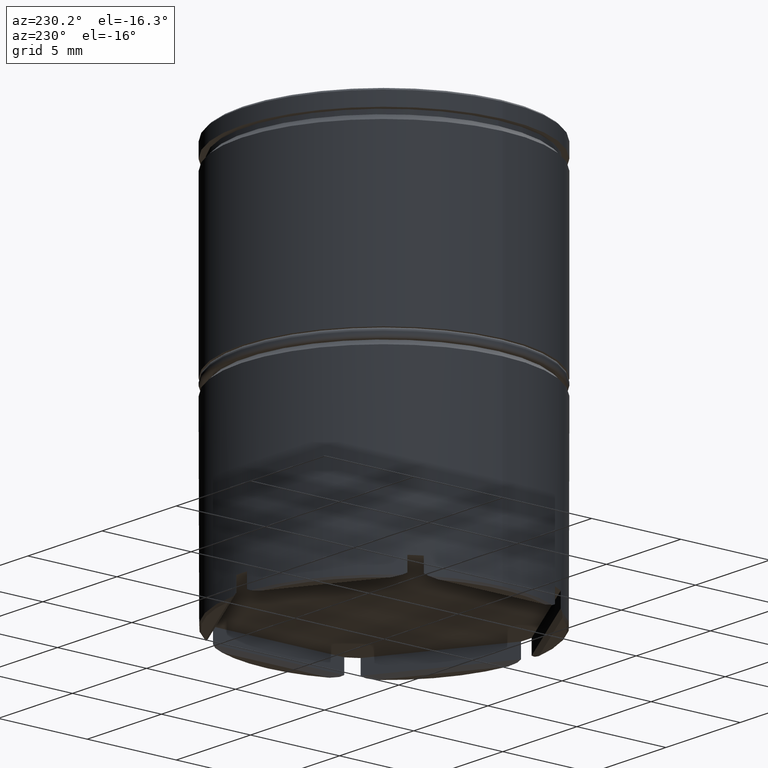
[diagram: clean part render]
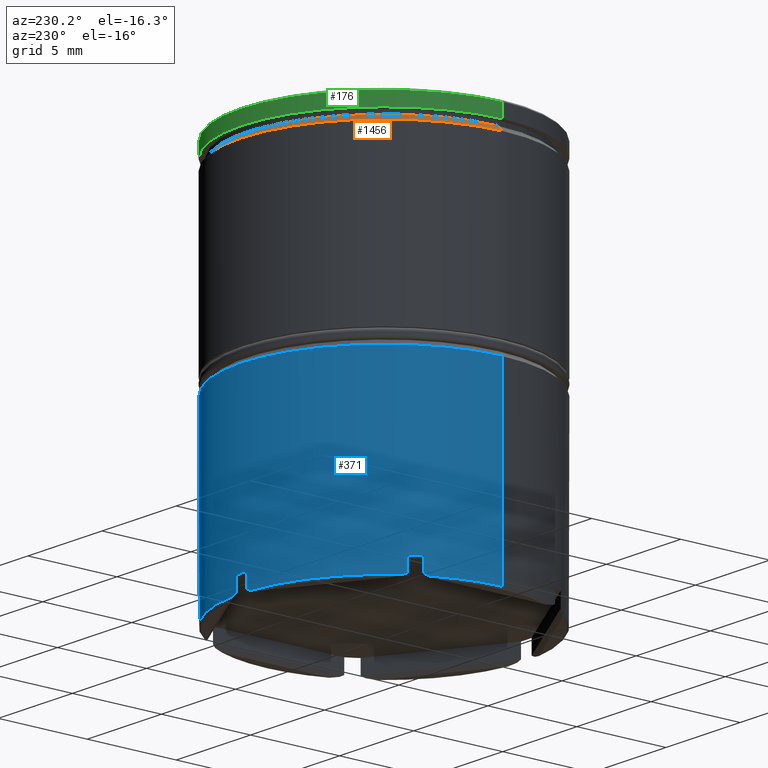
[diagram: same view with three faces highlighted in distinct colors, each labeled with its STEP entity id]
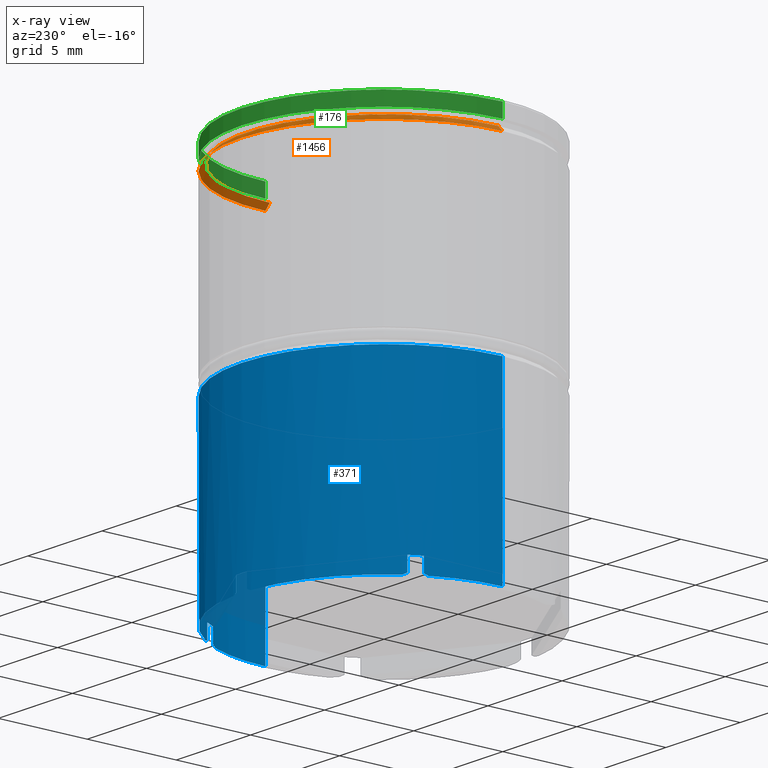
[diagram: x-ray of the same camera — body ghosted, the three highlighted faces saturated]
A machine part, auxiliary view with three faces highlighted in distinct colors.
The next image is the same camera in x-ray (body ghosted, the three faces saturated) — at least one of them is partly hidden behind the body in this view.
Their STEP definitions:

[orange] entity #1456 — the highlighted conical surface has half-angle 45 deg.
#74 = DIRECTION ( 'NONE',  ( 0.000000000000000000, 0.000000000000000000, -1.000000000000000000 ) ) ;
#82 = VECTOR ( 'NONE', #817, 1000.000000000000000 ) ;
#91 = DIRECTION ( 'NONE',  ( 0.000000000000000000, 0.000000000000000000, -1.000000000000000000 ) ) ;
#97 = ORIENTED_EDGE ( 'NONE', *, *, #109, .T. ) ;
#109 = EDGE_CURVE ( 'NONE', #306, #643, #930, .T. ) ;
#115 = AXIS2_PLACEMENT_3D ( 'NONE', #321, #91, #314 ) ;
#168 = CONICAL_SURFACE ( 'NONE', #349, 7.699999999999994849, 0.7853981633974511656 ) ;
#188 = EDGE_LOOP ( 'NONE', ( #353, #97, #530, #1509 ) ) ;
#200 = LINE ( 'NONE', #207, #1150 ) ;
#207 = CARTESIAN_POINT ( 'NONE',  ( -7.699999999999994849, 0.000000000000000000, -1.125000000000000222 ) ) ;
#297 = CARTESIAN_POINT ( 'NONE',  ( -8.000000000000000000, 9.797174393178825657E-16, -1.425000000000003597 ) ) ;
#306 = VERTEX_POINT ( 'NONE', #433 ) ;
#314 = DIRECTION ( 'NONE',  ( 1.000000000000000000, 0.000000000000000000, 0.000000000000000000 ) ) ;
#321 = CARTESIAN_POINT ( 'NONE',  ( 0.000000000000000000, 0.000000000000000000, -1.425000000000003597 ) ) ;
#349 = AXIS2_PLACEMENT_3D ( 'NONE', #723, #74, #1090 ) ;
#353 = ORIENTED_EDGE ( 'NONE', *, *, #1625, .F. ) ;
#367 = DIRECTION ( 'NONE',  ( -0.000000000000000000, -0.000000000000000000, 1.000000000000000000 ) ) ;
#381 = CIRCLE ( 'NONE', #1307, 7.700000000000000178 ) ;
#388 = CARTESIAN_POINT ( 'NONE',  ( 7.699999999999994849, 9.429780353434613113E-16, -1.125000000000000222 ) ) ;
#433 = CARTESIAN_POINT ( 'NONE',  ( 7.700000000000000178, 0.000000000000000000, -1.125000000000000222 ) ) ;
#441 = CARTESIAN_POINT ( 'NONE',  ( -7.700000000000000178, 9.429780353434619030E-16, -1.125000000000000222 ) ) ;
#530 = ORIENTED_EDGE ( 'NONE', *, *, #810, .F. ) ;
#643 = VERTEX_POINT ( 'NONE', #1190 ) ;
#651 = DIRECTION ( 'NONE',  ( 1.000000000000000000, 0.000000000000000000, 0.000000000000000000 ) ) ;
#658 = CIRCLE ( 'NONE', #115, 8.000000000000000000 ) ;
#718 = VERTEX_POINT ( 'NONE', #297 ) ;
#723 = CARTESIAN_POINT ( 'NONE',  ( 0.000000000000000000, 0.000000000000000000, -1.125000000000000222 ) ) ;
#725 = DIRECTION ( 'NONE',  ( -0.7071067811865495711, 0.000000000000000000, -0.7071067811865454633 ) ) ;
#810 = EDGE_CURVE ( 'NONE', #718, #643, #658, .T. ) ;
#817 = DIRECTION ( 'NONE',  ( 0.7071067811865495711, 8.659560562354957510E-17, -0.7071067811865454633 ) ) ;
#847 = VERTEX_POINT ( 'NONE', #441 ) ;
#878 = EDGE_CURVE ( 'NONE', #847, #718, #200, .T. ) ;
#896 = CARTESIAN_POINT ( 'NONE',  ( 0.000000000000000000, 0.000000000000000000, -1.125000000000000222 ) ) ;
#930 = LINE ( 'NONE', #388, #82 ) ;
#1090 = DIRECTION ( 'NONE',  ( -1.000000000000000000, 0.000000000000000000, 0.000000000000000000 ) ) ;
#1150 = VECTOR ( 'NONE', #725, 1000.000000000000000 ) ;
#1190 = CARTESIAN_POINT ( 'NONE',  ( 8.000000000000000000, 0.000000000000000000, -1.425000000000003597 ) ) ;
#1307 = AXIS2_PLACEMENT_3D ( 'NONE', #896, #367, #651 ) ;
#1456 = ADVANCED_FACE ( 'NONE', ( #1587 ), #168, .T. ) ;
#1509 = ORIENTED_EDGE ( 'NONE', *, *, #878, .F. ) ;
#1587 = FACE_OUTER_BOUND ( 'NONE', #188, .T. ) ;
#1625 = EDGE_CURVE ( 'NONE', #306, #847, #381, .T. ) ;

[blue] entity #371 — the highlighted cylindrical surface (partial cylindrical patch) has radius 8 mm, axis along (-0, -0, 1).
#3 = LINE ( 'NONE', #379, #791 ) ;
#6 = DIRECTION ( 'NONE',  ( 1.000000000000000000, 0.000000000000000000, 0.000000000000000000 ) ) ;
#10 = CARTESIAN_POINT ( 'NONE',  ( -6.661676551691632753, 4.430303897107394029, -21.86759399722601671 ) ) ;
#28 = FACE_OUTER_BOUND ( 'NONE', #103, .T. ) ;
#30 = EDGE_CURVE ( 'NONE', #1593, #1501, #3, .T. ) ;
#46 = ORIENTED_EDGE ( 'NONE', *, *, #1385, .T. ) ;
#55 = EDGE_CURVE ( 'NONE', #1608, #736, #1322, .T. ) ;
#65 = ORIENTED_EDGE ( 'NONE', *, *, #535, .F. ) ;
#68 = EDGE_CURVE ( 'NONE', #844, #1013, #685, .T. ) ;
#72 = ORIENTED_EDGE ( 'NONE', *, *, #1114, .F. ) ;
#78 = CARTESIAN_POINT ( 'NONE',  ( 0.000000000000000000, 0.000000000000000000, -21.90000000000000213 ) ) ;
#90 = VERTEX_POINT ( 'NONE', #528 ) ;
#103 = EDGE_LOOP ( 'NONE', ( #1345, #1474, #340, #65, #586, #1252, #1230, #1632, #296, #479, #1374, #727, #779, #560, #342, #579, #1379, #452, #72, #46, #629, #553 ) ) ;
#106 = VERTEX_POINT ( 'NONE', #155 ) ;
#110 = AXIS2_PLACEMENT_3D ( 'NONE', #151, #672, #1568 ) ;
#122 = DIRECTION ( 'NONE',  ( -0.000000000000000000, -0.000000000000000000, 1.000000000000000000 ) ) ;
#123 = CARTESIAN_POINT ( 'NONE',  ( 7.100000000000005862, 3.686461718233341678, -20.99999999999999645 ) ) ;
#129 = DIRECTION ( 'NONE',  ( 0.000000000000000000, 0.000000000000000000, -1.000000000000000000 ) ) ;
#132 = CARTESIAN_POINT ( 'NONE',  ( -7.167593997226017422, 3.554029177006380991, -21.86759399722601671 ) ) ;
#151 = CARTESIAN_POINT ( 'NONE',  ( 0.000000000000000000, 0.000000000000000000, -21.90000000000000213 ) ) ;
#152 = EDGE_CURVE ( 'NONE', #106, #1442, #1306, .T. ) ;
#155 = CARTESIAN_POINT ( 'NONE',  ( 0.3574305019310944909, 7.992011225986190404, -20.99999999999999645 ) ) ;
#156 = CARTESIAN_POINT ( 'NONE',  ( -7.100000000000005862, 3.686461718233341678, -21.80000000000000782 ) ) ;
#165 = DIRECTION ( 'NONE',  ( 1.000000000000000000, 0.000000000000000000, 0.000000000000000000 ) ) ;
#187 = VERTEX_POINT ( 'NONE', #661 ) ;
#202 = EDGE_CURVE ( 'NONE', #1087, #1519, #749, .T. ) ;
#203 = LINE ( 'NONE', #1193, #1622 ) ;
#222 = VERTEX_POINT ( 'NONE', #1580 ) ;
#227 = VERTEX_POINT ( 'NONE', #1494 ) ;
#229 = DIRECTION ( 'NONE',  ( -0.000000000000000000, -0.000000000000000000, 1.000000000000000000 ) ) ;
#233 = CARTESIAN_POINT ( 'NONE',  ( 8.000000000000000000, 0.000000000000000000, 0.000000000000000000 ) ) ;
#265 = EDGE_CURVE ( 'NONE', #736, #1593, #1254, .T. ) ;
#272 = EDGE_CURVE ( 'NONE', #222, #1607, #1217, .T. ) ;
#276 = DIRECTION ( 'NONE',  ( -1.000000000000000000, 1.154631945610162960E-14, 0.000000000000000000 ) ) ;
#292 = DIRECTION ( 'NONE',  ( -0.000000000000000000, -0.000000000000000000, 1.000000000000000000 ) ) ;
#294 = VECTOR ( 'NONE', #1166, 1000.000000000000000 ) ;
#296 = ORIENTED_EDGE ( 'NONE', *, *, #68, .F. ) ;
#311 = CARTESIAN_POINT ( 'NONE',  ( 0.3574305019310944909, 7.992011225986190404, -21.80000000000000071 ) ) ;
#318 = CARTESIAN_POINT ( 'NONE',  ( 0.5059174455343885546, 7.984333074113772355, -21.86759399722602026 ) ) ;
#329 = EDGE_CURVE ( 'NONE', #1076, #227, #512, .T. ) ;
#340 = ORIENTED_EDGE ( 'NONE', *, *, #1210, .T. ) ;
#342 = ORIENTED_EDGE ( 'NONE', *, *, #1427, .F. ) ;
#356 = CARTESIAN_POINT ( 'NONE',  ( -6.619933774108297975, 4.491823329831691858, -21.90000000000000213 ) ) ;
#364 = CARTESIAN_POINT ( 'NONE',  ( -0.4317007308678146305, 7.988689603373715364, -21.83425850490418441 ) ) ;
#371 = ADVANCED_FACE ( 'NONE', ( #28 ), #679, .T. ) ;
#373 = CARTESIAN_POINT ( 'NONE',  ( 0.000000000000000000, 0.000000000000000000, -21.90000000000000213 ) ) ;
#379 = CARTESIAN_POINT ( 'NONE',  ( -8.000000000000000000, 9.797174393178825657E-16, 0.000000000000000000 ) ) ;
#385 = DIRECTION ( 'NONE',  ( 0.000000000000000000, 0.000000000000000000, -1.000000000000000000 ) ) ;
#391 = DIRECTION ( 'NONE',  ( -0.000000000000000000, -0.000000000000000000, 1.000000000000000000 ) ) ;
#405 = AXIS2_PLACEMENT_3D ( 'NONE', #78, #1096, #1598 ) ;
#411 = CARTESIAN_POINT ( 'NONE',  ( 6.702557774036362659, 4.368208601450695561, -21.83425850490418441 ) ) ;
#413 = CARTESIAN_POINT ( 'NONE',  ( -7.200000000000001066, 3.487119154832536871, -21.90000000000000213 ) ) ;
#452 = ORIENTED_EDGE ( 'NONE', *, *, #1533, .T. ) ;
#463 = DIRECTION ( 'NONE',  ( -1.000000000000000000, 0.000000000000000000, 0.000000000000000000 ) ) ;
#471 = CARTESIAN_POINT ( 'NONE',  ( 0.4317007308678149080, 7.988689603373718917, -21.83425850490418441 ) ) ;
#473 = VERTEX_POINT ( 'NONE', #509 ) ;
#479 = ORIENTED_EDGE ( 'NONE', *, *, #1291, .T. ) ;
#487 = CIRCLE ( 'NONE', #1489, 8.000000000000000000 ) ;
#492 = DIRECTION ( 'NONE',  ( -1.000000000000000000, 2.664535259100375697E-15, 0.000000000000000000 ) ) ;
#509 = CARTESIAN_POINT ( 'NONE',  ( -7.100000000000005862, 3.686461718233341678, -20.99999999999999645 ) ) ;
#512 = CIRCLE ( 'NONE', #110, 8.000000000000000000 ) ;
#528 = CARTESIAN_POINT ( 'NONE',  ( -6.619933774108297975, 4.491823329831691858, -21.90000000000000213 ) ) ;
#531 =( BOUNDED_CURVE ( )  B_SPLINE_CURVE ( 3, ( #1027, #411, #809, #1298 ),
 .UNSPECIFIED., .F., .T. ) 
 B_SPLINE_CURVE_WITH_KNOTS ( ( 4, 4 ),
 ( 2.662687568714984465, 2.690565841793532975 ),
 .UNSPECIFIED. ) 
 CURVE ( )  GEOMETRIC_REPRESENTATION_ITEM ( )  RATIONAL_B_SPLINE_CURVE ( ( 1.000000000000000000, 0.9999352345395148278, 0.9999352345395148278, 1.000000000000000000 ) ) 
 REPRESENTATION_ITEM ( '' )  );
#535 = EDGE_CURVE ( 'NONE', #1076, #895, #907, .T. ) ;
#540 = CARTESIAN_POINT ( 'NONE',  ( 0.000000000000000000, 0.000000000000000000, 0.000000000000000000 ) ) ;
#553 = ORIENTED_EDGE ( 'NONE', *, *, #55, .T. ) ;
#560 = ORIENTED_EDGE ( 'NONE', *, *, #1559, .T. ) ;
#565 = CARTESIAN_POINT ( 'NONE',  ( 7.100000000000005862, 3.686461718233341678, 0.000000000000000000 ) ) ;
#575 = CARTESIAN_POINT ( 'NONE',  ( 6.742569498068909262, 4.305549507752845173, -20.99999999999999645 ) ) ;
#579 = ORIENTED_EDGE ( 'NONE', *, *, #272, .T. ) ;
#586 = ORIENTED_EDGE ( 'NONE', *, *, #329, .T. ) ;
#592 = CARTESIAN_POINT ( 'NONE',  ( 7.134258504904175346, 3.620481001923024689, -21.83425850490418085 ) ) ;
#600 = VECTOR ( 'NONE', #1171, 1000.000000000000000 ) ;
#607 = DIRECTION ( 'NONE',  ( -1.000000000000000000, -1.776356839400250465E-15, 0.000000000000000000 ) ) ;
#613 = CARTESIAN_POINT ( 'NONE',  ( 0.000000000000000000, 0.000000000000000000, -20.99999999999999645 ) ) ;
#615 = LINE ( 'NONE', #1496, #1097 ) ;
#629 = ORIENTED_EDGE ( 'NONE', *, *, #1289, .F. ) ;
#661 = CARTESIAN_POINT ( 'NONE',  ( -6.742569498068907485, 4.305549507752846061, -20.99999999999999645 ) ) ;
#672 = DIRECTION ( 'NONE',  ( -0.000000000000000000, -0.000000000000000000, 1.000000000000000000 ) ) ;
#679 = CYLINDRICAL_SURFACE ( 'NONE', #1178, 8.000000000000000000 ) ;
#685 = LINE ( 'NONE', #1293, #956 ) ;
#710 = CIRCLE ( 'NONE', #865, 8.000000000000000000 ) ;
#712 = VERTEX_POINT ( 'NONE', #813 ) ;
#715 = DIRECTION ( 'NONE',  ( -0.000000000000000000, -0.000000000000000000, 1.000000000000000000 ) ) ;
#727 = ORIENTED_EDGE ( 'NONE', *, *, #1016, .T. ) ;
#736 = VERTEX_POINT ( 'NONE', #940 ) ;
#737 = CIRCLE ( 'NONE', #405, 8.000000000000000000 ) ;
#738 = DIRECTION ( 'NONE',  ( -0.000000000000000000, -0.000000000000000000, 1.000000000000000000 ) ) ;
#749 = LINE ( 'NONE', #565, #1301 ) ;
#769 = AXIS2_PLACEMENT_3D ( 'NONE', #866, #738, #607 ) ;
#777 = CARTESIAN_POINT ( 'NONE',  ( -7.100000000000005862, 3.686461718233341678, -21.80000000000000782 ) ) ;
#779 = ORIENTED_EDGE ( 'NONE', *, *, #152, .F. ) ;
#791 = VECTOR ( 'NONE', #229, 1000.000000000000000 ) ;
#792 = CARTESIAN_POINT ( 'NONE',  ( -7.100000000000005862, 3.686461718233341678, 0.000000000000000000 ) ) ;
#809 = CARTESIAN_POINT ( 'NONE',  ( 6.661676551691631865, 4.430303897107399358, -21.86759399722602382 ) ) ;
#813 = CARTESIAN_POINT ( 'NONE',  ( -0.3574305019310927700, 7.992011225986188627, -20.99999999999999645 ) ) ;
#841 = CIRCLE ( 'NONE', #769, 8.000000000000000000 ) ;
#844 = VERTEX_POINT ( 'NONE', #1584 ) ;
#865 = AXIS2_PLACEMENT_3D ( 'NONE', #1270, #129, #6 ) ;
#866 = CARTESIAN_POINT ( 'NONE',  ( 0.000000000000000000, 0.000000000000000000, -21.90000000000000213 ) ) ;
#881 = EDGE_CURVE ( 'NONE', #1056, #949, #737, .T. ) ;
#895 = VERTEX_POINT ( 'NONE', #973 ) ;
#907 = LINE ( 'NONE', #233, #1118 ) ;
#908 = CARTESIAN_POINT ( 'NONE',  ( -0.5059174455343817822, 7.984333074113770579, -21.86759399722602026 ) ) ;
#917 = CARTESIAN_POINT ( 'NONE',  ( -8.000000000000000000, 9.797174393178825657E-16, -21.90000000000000213 ) ) ;
#934 = AXIS2_PLACEMENT_3D ( 'NONE', #373, #391, #492 ) ;
#940 = CARTESIAN_POINT ( 'NONE',  ( -7.200000000000001066, 3.487119154832536871, -21.90000000000000213 ) ) ;
#941 = AXIS2_PLACEMENT_3D ( 'NONE', #944, #715, #1209 ) ;
#944 = CARTESIAN_POINT ( 'NONE',  ( 0.000000000000000000, 0.000000000000000000, -20.99999999999999645 ) ) ;
#949 = VERTEX_POINT ( 'NONE', #1398 ) ;
#956 = VECTOR ( 'NONE', #1550, 1000.000000000000000 ) ;
#972 = CARTESIAN_POINT ( 'NONE',  ( 8.000000000000000000, 0.000000000000000000, -21.90000000000000213 ) ) ;
#973 = CARTESIAN_POINT ( 'NONE',  ( 8.000000000000000000, 0.000000000000000000, -11.54999999999999893 ) ) ;
#989 = VERTEX_POINT ( 'NONE', #1101 ) ;
#1013 = VERTEX_POINT ( 'NONE', #575 ) ;
#1016 = EDGE_CURVE ( 'NONE', #949, #1442, #1429, .T. ) ;
#1027 = CARTESIAN_POINT ( 'NONE',  ( 6.742569498068909262, 4.305549507752845173, -21.80000000000000071 ) ) ;
#1044 = CARTESIAN_POINT ( 'NONE',  ( 0.3574305019310944909, 7.992011225986190404, 0.000000000000000000 ) ) ;
#1056 = VERTEX_POINT ( 'NONE', #1339 ) ;
#1059 = EDGE_CURVE ( 'NONE', #227, #1519, #1260, .T. ) ;
#1076 = VERTEX_POINT ( 'NONE', #972 ) ;
#1078 = DIRECTION ( 'NONE',  ( -0.000000000000000000, -0.000000000000000000, 1.000000000000000000 ) ) ;
#1087 = VERTEX_POINT ( 'NONE', #123 ) ;
#1096 = DIRECTION ( 'NONE',  ( -0.000000000000000000, -0.000000000000000000, 1.000000000000000000 ) ) ;
#1097 = VECTOR ( 'NONE', #385, 1000.000000000000000 ) ;
#1101 = CARTESIAN_POINT ( 'NONE',  ( -6.742569498068905709, 4.305549507752851390, -21.80000000000000782 ) ) ;
#1107 = CARTESIAN_POINT ( 'NONE',  ( 7.167593997226018310, 3.554029177006382767, -21.86759399722601671 ) ) ;
#1110 = CARTESIAN_POINT ( 'NONE',  ( -8.000000000000000000, 9.797174393178825657E-16, -11.54999999999999893 ) ) ;
#1114 = EDGE_CURVE ( 'NONE', #187, #989, #615, .T. ) ;
#1118 = VECTOR ( 'NONE', #122, 1000.000000000000000 ) ;
#1156 = CIRCLE ( 'NONE', #941, 8.000000000000000000 ) ;
#1166 = DIRECTION ( 'NONE',  ( 0.000000000000000000, 0.000000000000000000, -1.000000000000000000 ) ) ;
#1171 = DIRECTION ( 'NONE',  ( -0.000000000000000000, -0.000000000000000000, 1.000000000000000000 ) ) ;
#1178 = AXIS2_PLACEMENT_3D ( 'NONE', #540, #292, #165 ) ;
#1193 = CARTESIAN_POINT ( 'NONE',  ( -0.3574305019310984322, 7.992011225986190404, 0.000000000000000000 ) ) ;
#1200 = CARTESIAN_POINT ( 'NONE',  ( 7.200000000000000178, 3.487119154832540424, -21.90000000000000213 ) ) ;
#1202 = DIRECTION ( 'NONE',  ( 0.000000000000000000, 0.000000000000000000, -1.000000000000000000 ) ) ;
#1209 = DIRECTION ( 'NONE',  ( -1.000000000000000000, 3.552713678800500929E-15, 0.000000000000000000 ) ) ;
#1210 = EDGE_CURVE ( 'NONE', #1501, #895, #710, .T. ) ;
#1217 =( BOUNDED_CURVE ( )  B_SPLINE_CURVE ( 3, ( #1370, #364, #908, #1250 ),
 .UNSPECIFIED., .F., .T. ) 
 B_SPLINE_CURVE_WITH_KNOTS ( ( 4, 4 ),
 ( 2.662687568714985353, 2.690565841793531199 ),
 .UNSPECIFIED. ) 
 CURVE ( )  GEOMETRIC_REPRESENTATION_ITEM ( )  RATIONAL_B_SPLINE_CURVE ( ( 1.000000000000000000, 0.9999352345395148278, 0.9999352345395148278, 1.000000000000000000 ) ) 
 REPRESENTATION_ITEM ( '' )  );
#1230 = ORIENTED_EDGE ( 'NONE', *, *, #202, .F. ) ;
#1234 = CARTESIAN_POINT ( 'NONE',  ( -6.702557774036359994, 4.368208601450696449, -21.83425850490418441 ) ) ;
#1250 = CARTESIAN_POINT ( 'NONE',  ( -0.5800662258917000935, 7.978942484664226065, -21.90000000000000213 ) ) ;
#1252 = ORIENTED_EDGE ( 'NONE', *, *, #1059, .T. ) ;
#1254 = CIRCLE ( 'NONE', #934, 8.000000000000000000 ) ;
#1260 =( BOUNDED_CURVE ( )  B_SPLINE_CURVE ( 3, ( #1200, #1107, #592, #1350 ),
 .UNSPECIFIED., .F., .T. ) 
 B_SPLINE_CURVE_WITH_KNOTS ( ( 4, 4 ),
 ( 3.592619465386055477, 3.620497738464601767 ),
 .UNSPECIFIED. ) 
 CURVE ( )  GEOMETRIC_REPRESENTATION_ITEM ( )  RATIONAL_B_SPLINE_CURVE ( ( 1.000000000000000000, 0.9999352345395148278, 0.9999352345395148278, 1.000000000000000000 ) ) 
 REPRESENTATION_ITEM ( '' )  );
#1270 = CARTESIAN_POINT ( 'NONE',  ( 0.000000000000000000, 0.000000000000000000, -11.54999999999999893 ) ) ;
#1273 = CARTESIAN_POINT ( 'NONE',  ( -7.134258504904176235, 3.620481001923023801, -21.83425850490418085 ) ) ;
#1289 = EDGE_CURVE ( 'NONE', #1608, #473, #1401, .T. ) ;
#1291 = EDGE_CURVE ( 'NONE', #844, #1056, #531, .T. ) ;
#1293 = CARTESIAN_POINT ( 'NONE',  ( 6.742569498068909262, 4.305549507752845173, 0.000000000000000000 ) ) ;
#1298 = CARTESIAN_POINT ( 'NONE',  ( 6.619933774108291757, 4.491823329831700740, -21.90000000000000213 ) ) ;
#1301 = VECTOR ( 'NONE', #1202, 1000.000000000000000 ) ;
#1306 = LINE ( 'NONE', #1044, #294 ) ;
#1322 =( BOUNDED_CURVE ( )  B_SPLINE_CURVE ( 3, ( #777, #1273, #132, #413 ),
 .UNSPECIFIED., .F., .T. ) 
 B_SPLINE_CURVE_WITH_KNOTS ( ( 4, 4 ),
 ( 2.662687568714984465, 2.690565841793530755 ),
 .UNSPECIFIED. ) 
 CURVE ( )  GEOMETRIC_REPRESENTATION_ITEM ( )  RATIONAL_B_SPLINE_CURVE ( ( 1.000000000000000000, 0.9999352345395148278, 0.9999352345395148278, 1.000000000000000000 ) ) 
 REPRESENTATION_ITEM ( '' )  );
#1339 = CARTESIAN_POINT ( 'NONE',  ( 6.619933774108291757, 4.491823329831700740, -21.90000000000000213 ) ) ;
#1345 = ORIENTED_EDGE ( 'NONE', *, *, #265, .T. ) ;
#1350 = CARTESIAN_POINT ( 'NONE',  ( 7.100000000000005862, 3.686461718233341678, -21.80000000000000782 ) ) ;
#1359 =( BOUNDED_CURVE ( )  B_SPLINE_CURVE ( 3, ( #356, #10, #1234, #1361 ),
 .UNSPECIFIED., .F., .T. ) 
 B_SPLINE_CURVE_WITH_KNOTS ( ( 4, 4 ),
 ( 3.592619465386055033, 3.620497738464601323 ),
 .UNSPECIFIED. ) 
 CURVE ( )  GEOMETRIC_REPRESENTATION_ITEM ( )  RATIONAL_B_SPLINE_CURVE ( ( 1.000000000000000000, 0.9999352345395148278, 0.9999352345395148278, 1.000000000000000000 ) ) 
 REPRESENTATION_ITEM ( '' )  );
#1361 = CARTESIAN_POINT ( 'NONE',  ( -6.742569498068905709, 4.305549507752851390, -21.80000000000000782 ) ) ;
#1369 = CARTESIAN_POINT ( 'NONE',  ( 7.100000000000005862, 3.686461718233341678, -21.80000000000000782 ) ) ;
#1370 = CARTESIAN_POINT ( 'NONE',  ( -0.3574305019310984322, 7.992011225986190404, -21.80000000000000782 ) ) ;
#1374 = ORIENTED_EDGE ( 'NONE', *, *, #881, .T. ) ;
#1379 = ORIENTED_EDGE ( 'NONE', *, *, #1603, .T. ) ;
#1385 = EDGE_CURVE ( 'NONE', #187, #473, #1156, .T. ) ;
#1398 = CARTESIAN_POINT ( 'NONE',  ( 0.5800662258917101965, 7.978942484664227841, -21.90000000000000213 ) ) ;
#1401 = LINE ( 'NONE', #792, #600 ) ;
#1406 = DIRECTION ( 'NONE',  ( -0.000000000000000000, -0.000000000000000000, 1.000000000000000000 ) ) ;
#1413 = AXIS2_PLACEMENT_3D ( 'NONE', #613, #1406, #276 ) ;
#1427 = EDGE_CURVE ( 'NONE', #222, #712, #203, .T. ) ;
#1429 =( BOUNDED_CURVE ( )  B_SPLINE_CURVE ( 3, ( #1588, #318, #471, #311 ),
 .UNSPECIFIED., .F., .T. ) 
 B_SPLINE_CURVE_WITH_KNOTS ( ( 4, 4 ),
 ( 3.592619465386054145, 3.620497738464602211 ),
 .UNSPECIFIED. ) 
 CURVE ( )  GEOMETRIC_REPRESENTATION_ITEM ( )  RATIONAL_B_SPLINE_CURVE ( ( 1.000000000000000000, 0.9999352345395148278, 0.9999352345395148278, 1.000000000000000000 ) ) 
 REPRESENTATION_ITEM ( '' )  );
#1440 = CIRCLE ( 'NONE', #1413, 8.000000000000000000 ) ;
#1442 = VERTEX_POINT ( 'NONE', #1569 ) ;
#1469 = CARTESIAN_POINT ( 'NONE',  ( 0.000000000000000000, 0.000000000000000000, -20.99999999999999645 ) ) ;
#1474 = ORIENTED_EDGE ( 'NONE', *, *, #30, .T. ) ;
#1477 = EDGE_CURVE ( 'NONE', #1087, #1013, #487, .T. ) ;
#1489 = AXIS2_PLACEMENT_3D ( 'NONE', #1469, #1594, #463 ) ;
#1494 = CARTESIAN_POINT ( 'NONE',  ( 7.200000000000000178, 3.487119154832540424, -21.90000000000000213 ) ) ;
#1496 = CARTESIAN_POINT ( 'NONE',  ( -6.742569498068905709, 4.305549507752851390, 0.000000000000000000 ) ) ;
#1501 = VERTEX_POINT ( 'NONE', #1110 ) ;
#1519 = VERTEX_POINT ( 'NONE', #1369 ) ;
#1533 = EDGE_CURVE ( 'NONE', #90, #989, #1359, .T. ) ;
#1535 = CARTESIAN_POINT ( 'NONE',  ( -0.5800662258917000935, 7.978942484664226065, -21.90000000000000213 ) ) ;
#1550 = DIRECTION ( 'NONE',  ( -0.000000000000000000, -0.000000000000000000, 1.000000000000000000 ) ) ;
#1559 = EDGE_CURVE ( 'NONE', #106, #712, #1440, .T. ) ;
#1568 = DIRECTION ( 'NONE',  ( -1.000000000000000000, 0.000000000000000000, 0.000000000000000000 ) ) ;
#1569 = CARTESIAN_POINT ( 'NONE',  ( 0.3574305019310944909, 7.992011225986190404, -21.80000000000000071 ) ) ;
#1580 = CARTESIAN_POINT ( 'NONE',  ( -0.3574305019310984322, 7.992011225986190404, -21.80000000000000782 ) ) ;
#1584 = CARTESIAN_POINT ( 'NONE',  ( 6.742569498068909262, 4.305549507752845173, -21.80000000000000071 ) ) ;
#1588 = CARTESIAN_POINT ( 'NONE',  ( 0.5800662258917101965, 7.978942484664227841, -21.90000000000000213 ) ) ;
#1593 = VERTEX_POINT ( 'NONE', #917 ) ;
#1594 = DIRECTION ( 'NONE',  ( -0.000000000000000000, -0.000000000000000000, 1.000000000000000000 ) ) ;
#1598 = DIRECTION ( 'NONE',  ( -1.000000000000000000, -1.776356839400250465E-15, 0.000000000000000000 ) ) ;
#1603 = EDGE_CURVE ( 'NONE', #1607, #90, #841, .T. ) ;
#1607 = VERTEX_POINT ( 'NONE', #1535 ) ;
#1608 = VERTEX_POINT ( 'NONE', #156 ) ;
#1622 = VECTOR ( 'NONE', #1078, 1000.000000000000000 ) ;
#1632 = ORIENTED_EDGE ( 'NONE', *, *, #1477, .T. ) ;

[green] entity #176 — the highlighted cylindrical surface (partial cylindrical patch) has radius 8 mm, axis along (-0, -0, 1).
#9 = FACE_OUTER_BOUND ( 'NONE', #758, .T. ) ;
#54 = DIRECTION ( 'NONE',  ( 1.000000000000000000, 0.000000000000000000, 0.000000000000000000 ) ) ;
#84 = CIRCLE ( 'NONE', #1461, 8.000000000000000000 ) ;
#86 = AXIS2_PLACEMENT_3D ( 'NONE', #580, #1341, #1075 ) ;
#92 = ORIENTED_EDGE ( 'NONE', *, *, #655, .T. ) ;
#135 = CARTESIAN_POINT ( 'NONE',  ( 8.000000000000000000, 0.000000000000000000, 0.000000000000000000 ) ) ;
#149 = DIRECTION ( 'NONE',  ( -0.000000000000000000, -0.000000000000000000, 1.000000000000000000 ) ) ;
#161 = CARTESIAN_POINT ( 'NONE',  ( -8.000000000000000000, 9.797174393178825657E-16, -0.8749999999999998890 ) ) ;
#176 = ADVANCED_FACE ( 'NONE', ( #9 ), #1397, .T. ) ;
#181 = CARTESIAN_POINT ( 'NONE',  ( 0.000000000000000000, 0.000000000000000000, -0.8749999999999998890 ) ) ;
#184 = VERTEX_POINT ( 'NONE', #796 ) ;
#221 = VERTEX_POINT ( 'NONE', #482 ) ;
#271 = LINE ( 'NONE', #135, #460 ) ;
#352 = EDGE_CURVE ( 'NONE', #184, #1314, #84, .T. ) ;
#407 = LINE ( 'NONE', #696, #544 ) ;
#460 = VECTOR ( 'NONE', #883, 1000.000000000000000 ) ;
#480 = ORIENTED_EDGE ( 'NONE', *, *, #856, .T. ) ;
#482 = CARTESIAN_POINT ( 'NONE',  ( 8.000000000000000000, 0.000000000000000000, -0.09999999999999592548 ) ) ;
#497 = EDGE_CURVE ( 'NONE', #184, #221, #271, .T. ) ;
#544 = VECTOR ( 'NONE', #149, 1000.000000000000000 ) ;
#549 = DIRECTION ( 'NONE',  ( 1.000000000000000000, 0.000000000000000000, 0.000000000000000000 ) ) ;
#580 = CARTESIAN_POINT ( 'NONE',  ( 0.000000000000000000, 0.000000000000000000, -0.09999999999999592548 ) ) ;
#655 = EDGE_CURVE ( 'NONE', #1314, #1623, #407, .T. ) ;
#696 = CARTESIAN_POINT ( 'NONE',  ( -8.000000000000000000, 9.797174393178825657E-16, 0.000000000000000000 ) ) ;
#701 = DIRECTION ( 'NONE',  ( -0.000000000000000000, -0.000000000000000000, 1.000000000000000000 ) ) ;
#711 = ORIENTED_EDGE ( 'NONE', *, *, #497, .F. ) ;
#758 = EDGE_LOOP ( 'NONE', ( #1257, #92, #480, #711 ) ) ;
#785 = CARTESIAN_POINT ( 'NONE',  ( 0.000000000000000000, 0.000000000000000000, 0.000000000000000000 ) ) ;
#796 = CARTESIAN_POINT ( 'NONE',  ( 8.000000000000000000, 0.000000000000000000, -0.8749999999999998890 ) ) ;
#856 = EDGE_CURVE ( 'NONE', #1623, #221, #1095, .T. ) ;
#883 = DIRECTION ( 'NONE',  ( -0.000000000000000000, -0.000000000000000000, 1.000000000000000000 ) ) ;
#1075 = DIRECTION ( 'NONE',  ( 1.000000000000000000, 0.000000000000000000, 0.000000000000000000 ) ) ;
#1095 = CIRCLE ( 'NONE', #86, 8.000000000000000000 ) ;
#1257 = ORIENTED_EDGE ( 'NONE', *, *, #352, .T. ) ;
#1314 = VERTEX_POINT ( 'NONE', #161 ) ;
#1341 = DIRECTION ( 'NONE',  ( 0.000000000000000000, 0.000000000000000000, -1.000000000000000000 ) ) ;
#1380 = CARTESIAN_POINT ( 'NONE',  ( -8.000000000000000000, 9.797174393178825657E-16, -0.09999999999999592548 ) ) ;
#1381 = AXIS2_PLACEMENT_3D ( 'NONE', #785, #1422, #549 ) ;
#1397 = CYLINDRICAL_SURFACE ( 'NONE', #1381, 8.000000000000000000 ) ;
#1422 = DIRECTION ( 'NONE',  ( -0.000000000000000000, -0.000000000000000000, 1.000000000000000000 ) ) ;
#1461 = AXIS2_PLACEMENT_3D ( 'NONE', #181, #701, #54 ) ;
#1623 = VERTEX_POINT ( 'NONE', #1380 ) ;